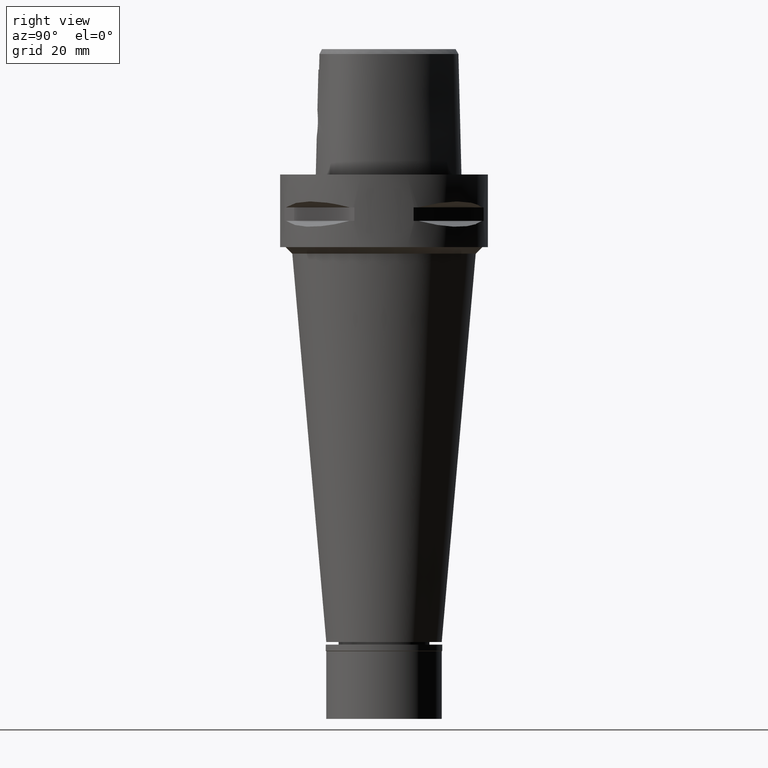
[diagram: clean part render]
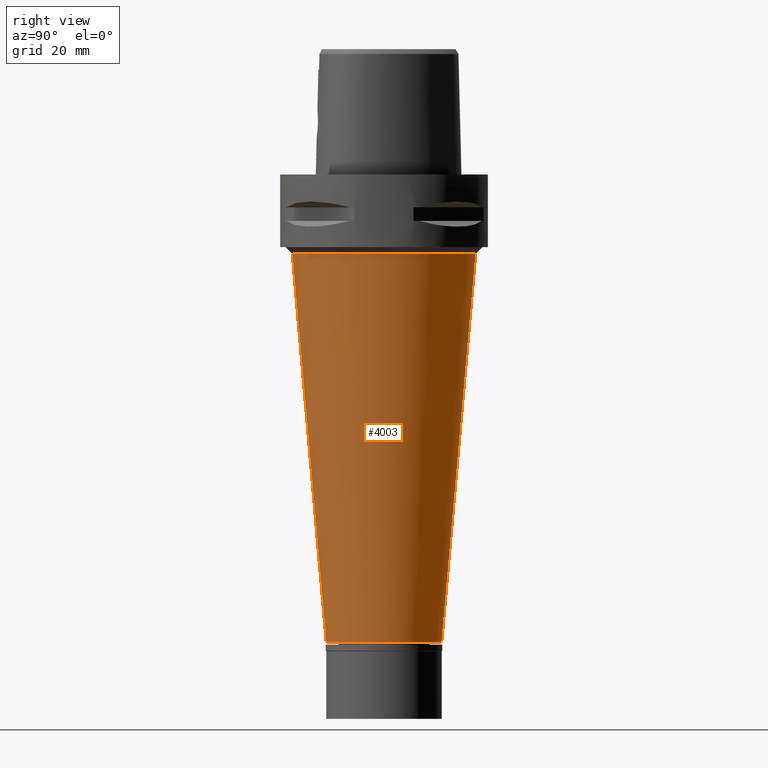
[diagram: same view with one face highlighted and labeled with its STEP entity id]
A machine part, right view. The second image highlights one B-rep face of the part: STEP entity #4003.
In plain terms, the highlighted conical surface has half-angle 5 deg.
Its self-contained STEP definition (entity closure, byte-faithful):
#174 = EDGE_LOOP ( 'NONE', ( #674, #318, #4066, #1363 ) ) ;
#318 = ORIENTED_EDGE ( 'NONE', *, *, #1918, .T. ) ;
#639 = LINE ( 'NONE', #3003, #4022 ) ;
#674 = ORIENTED_EDGE ( 'NONE', *, *, #3527, .F. ) ;
#677 = CARTESIAN_POINT ( 'NONE',  ( 0.0000000000000000000, -1.014619873093999966E-14, -82.84999999999999432 ) ) ;
#794 = DIRECTION ( 'NONE',  ( 0.0000000000000000000, 0.0000000000000000000, 1.000000000000000000 ) ) ;
#871 = VERTEX_POINT ( 'NONE', #3245 ) ;
#1171 = AXIS2_PLACEMENT_3D ( 'NONE', #677, #3763, #2213 ) ;
#1332 = CIRCLE ( 'NONE', #3953, 27.79741569699999815 ) ;
#1363 = ORIENTED_EDGE ( 'NONE', *, *, #2689, .F. ) ;
#1646 = EDGE_CURVE ( 'NONE', #4630, #3833, #3196, .T. ) ;
#1653 = CARTESIAN_POINT ( 'NONE',  ( 0.0000000000000000000, -17.50000000000000000, -141.6999999999999886 ) ) ;
#1909 = FACE_OUTER_BOUND ( 'NONE', #174, .T. ) ;
#1918 = EDGE_CURVE ( 'NONE', #871, #4630, #3278, .T. ) ;
#1983 = CONICAL_SURFACE ( 'NONE', #1171, 22.64870784849999907, 0.08726646259969973729 ) ;
#2213 = DIRECTION ( 'NONE',  ( 0.0000000000000000000, 1.000000000000000000, 0.0000000000000000000 ) ) ;
#2689 = EDGE_CURVE ( 'NONE', #4318, #3833, #639, .T. ) ;
#2723 = CARTESIAN_POINT ( 'NONE',  ( 0.0000000000000000000, 27.79741569699999815, -24.00000000000000000 ) ) ;
#3003 = CARTESIAN_POINT ( 'NONE',  ( 0.0000000000000000000, 27.79741569699999815, -24.00000000000000000 ) ) ;
#3196 = CIRCLE ( 'NONE', #3608, 17.50000000000000000 ) ;
#3245 = CARTESIAN_POINT ( 'NONE',  ( 0.0000000000000000000, -27.79741569699999815, -24.00000000000000000 ) ) ;
#3278 = LINE ( 'NONE', #4048, #3445 ) ;
#3420 = DIRECTION ( 'NONE',  ( 0.0000000000000000000, -0.08715574274765398866, -0.9961946980917458783 ) ) ;
#3445 = VECTOR ( 'NONE', #4826, 1000.000000000000000 ) ;
#3468 = DIRECTION ( 'NONE',  ( 0.0000000000000000000, -1.000000000000000000, 0.0000000000000000000 ) ) ;
#3527 = EDGE_CURVE ( 'NONE', #871, #4318, #1332, .T. ) ;
#3608 = AXIS2_PLACEMENT_3D ( 'NONE', #4555, #3850, #3468 ) ;
#3763 = DIRECTION ( 'NONE',  ( 0.0000000000000000000, 0.0000000000000000000, 1.000000000000000000 ) ) ;
#3833 = VERTEX_POINT ( 'NONE', #4877 ) ;
#3850 = DIRECTION ( 'NONE',  ( 0.0000000000000000000, 0.0000000000000000000, 1.000000000000000000 ) ) ;
#3953 = AXIS2_PLACEMENT_3D ( 'NONE', #4907, #794, #4688 ) ;
#4003 = ADVANCED_FACE ( 'NONE', ( #1909 ), #1983, .T. ) ;
#4022 = VECTOR ( 'NONE', #3420, 1000.000000000000000 ) ;
#4048 = CARTESIAN_POINT ( 'NONE',  ( 0.0000000000000000000, -27.79741569699999815, -24.00000000000000000 ) ) ;
#4066 = ORIENTED_EDGE ( 'NONE', *, *, #1646, .T. ) ;
#4318 = VERTEX_POINT ( 'NONE', #2723 ) ;
#4555 = CARTESIAN_POINT ( 'NONE',  ( 0.0000000000000000000, -1.014619873093999966E-14, -141.6999999999999886 ) ) ;
#4630 = VERTEX_POINT ( 'NONE', #1653 ) ;
#4688 = DIRECTION ( 'NONE',  ( 0.0000000000000000000, -1.000000000000000000, 0.0000000000000000000 ) ) ;
#4826 = DIRECTION ( 'NONE',  ( 0.0000000000000000000, 0.08715574274765398866, -0.9961946980917458783 ) ) ;
#4877 = CARTESIAN_POINT ( 'NONE',  ( 0.0000000000000000000, 17.50000000000000000, -141.6999999999999886 ) ) ;
#4907 = CARTESIAN_POINT ( 'NONE',  ( 0.0000000000000000000, -1.014619873093999966E-14, -24.00000000000000000 ) ) ;